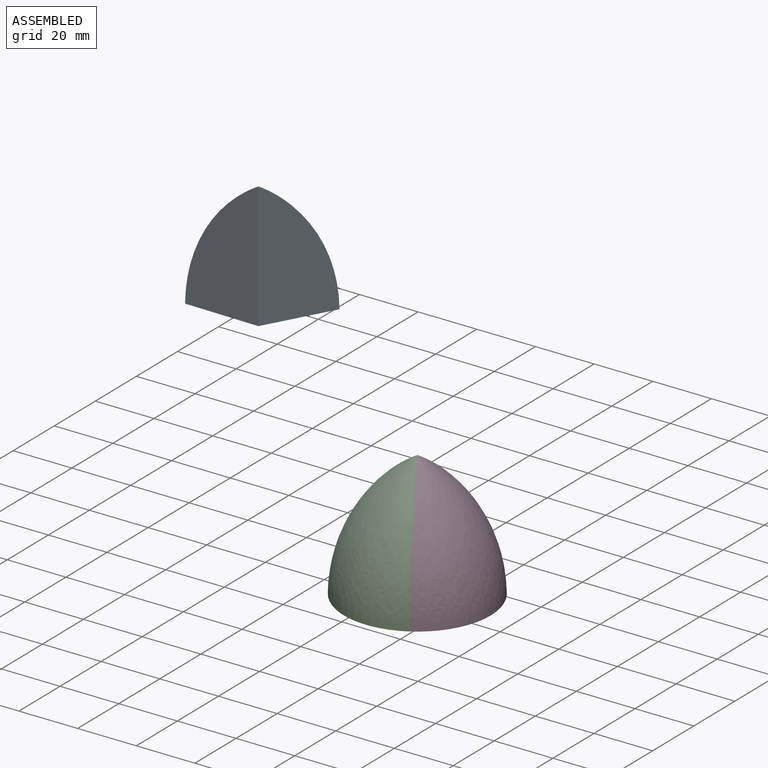
[diagram: assembled view]
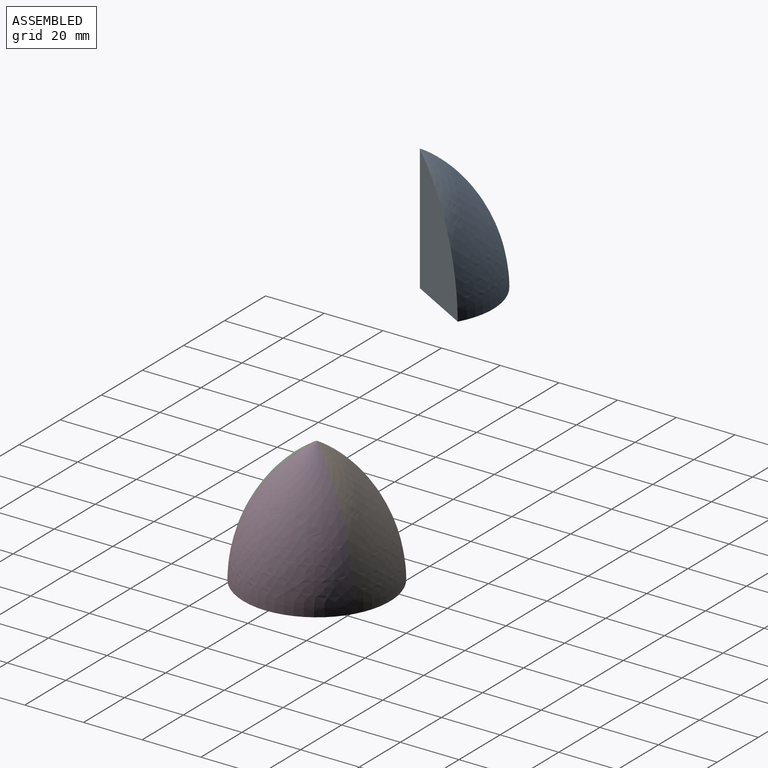
[diagram: assembled view, second angle]
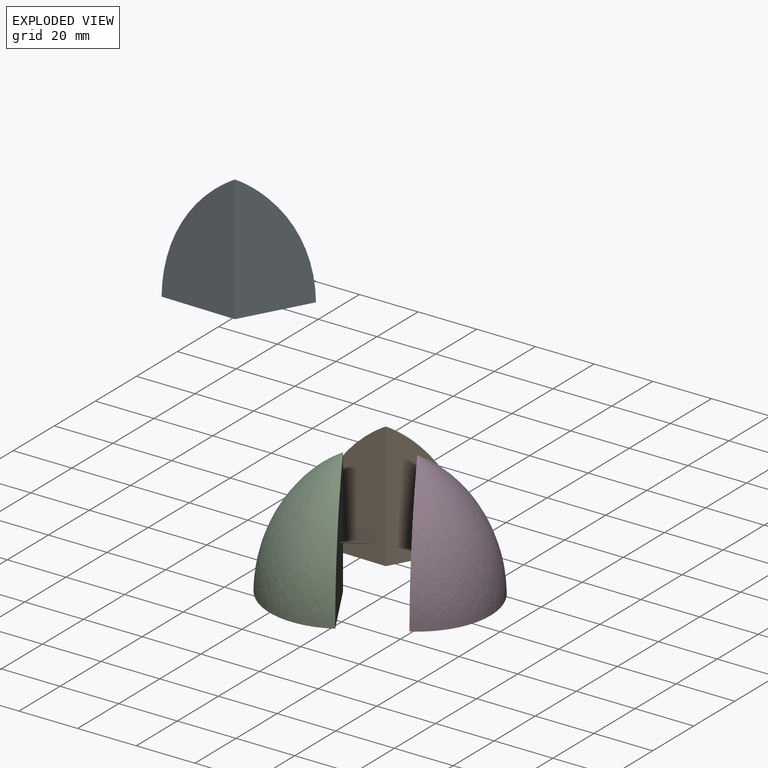
[diagram: exploded view]
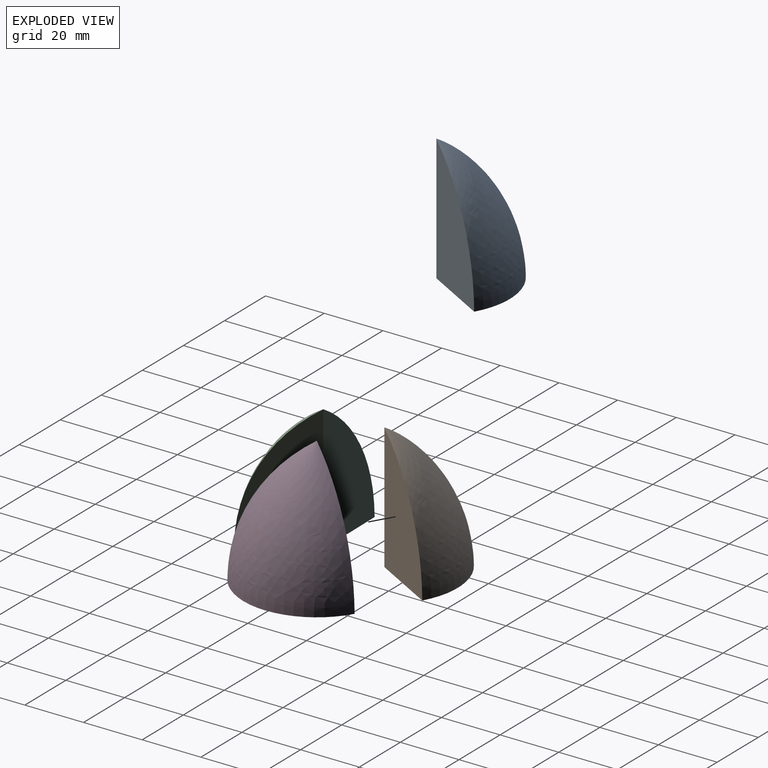
[diagram: exploded view, second angle]
ASSEMBLY  parts=4 mates=2
PART A: 4 faces, bbox 37.5x25x43 mm
  f0: revolved ~42.76x37.49mm, area 1764.1mm2, adj f1,f2,f3
  f1: cone r=24.99mm half-angle=89.4deg, axis (0,0,1), area 654.1mm2, adj f0,f2,f3
  f2: plane 43.03x21.64mm, normal (0.87,-0.5,0), area 757.4mm2, adj f0,f1,f3
  f3: plane 43.03x24.99mm, normal (0,-1,0), area 757.4mm2, adj f0,f1,f2
PART B: same geometry as A
PART C: same geometry as A
PART D: same geometry as A
PLACE A t=(-22.84,0.65,31.66)mm
PLACE B t=(30.03,2.52,-37.67)mm
PLACE C rot(axis=(0,0,1),120deg) t=(30,2.53,-37.66)mm
PLACE D rot(axis=(0,0,-1),120deg) t=(30.01,2.51,-37.67)mm
MATE planar D.f3 <-> B.f2  axis (-0.87,0.5,0) through (35.11,11.36,-21.02)mm
MATE planar C.f3 <-> D.f2  axis (0.87,0.5,0) through (35.11,-6.31,-21.02)mm
